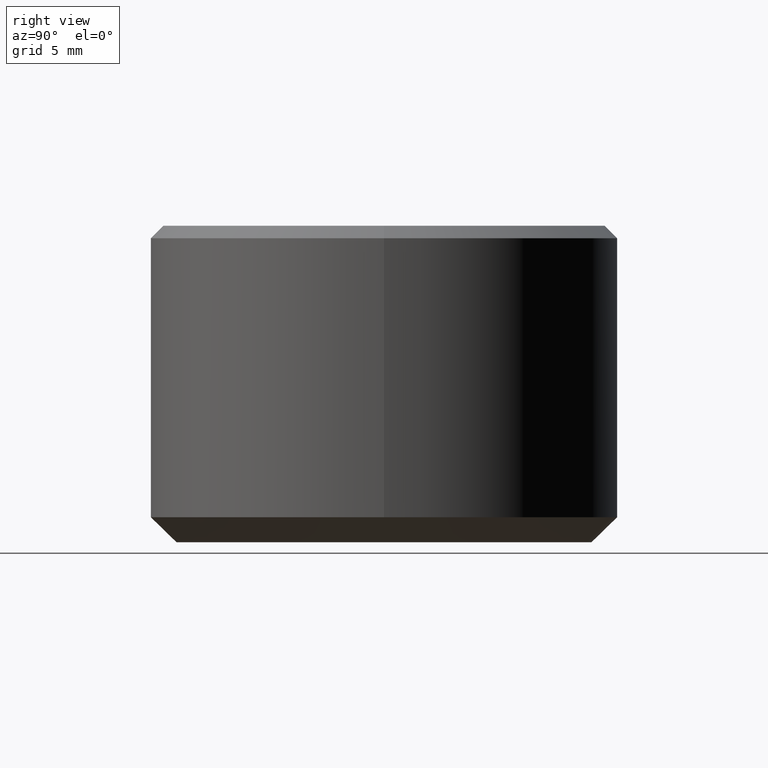
[diagram: clean part render]
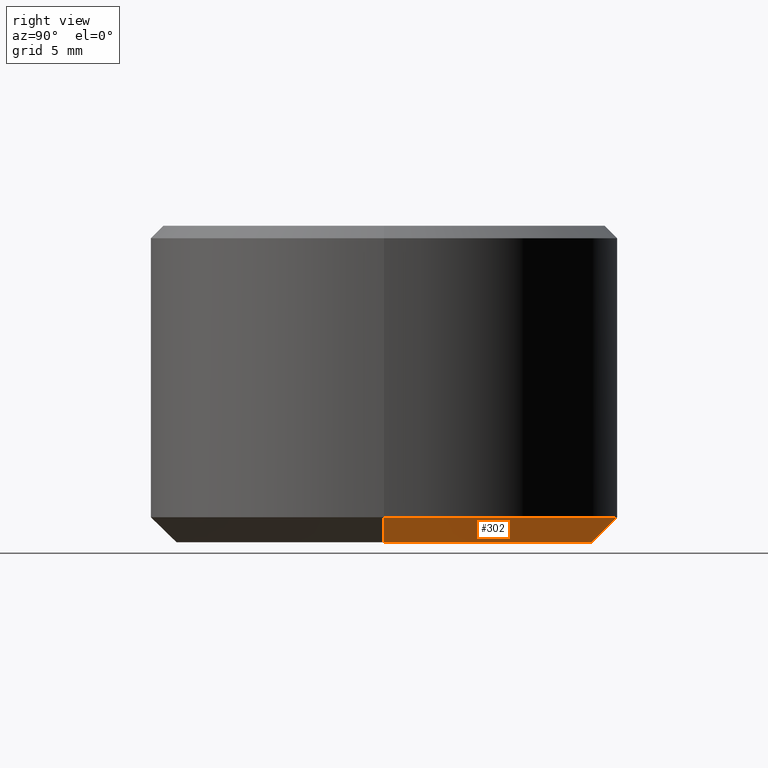
[diagram: same view with one face highlighted and labeled with its STEP entity id]
A machine part, right view. The second image highlights one B-rep face of the part: STEP entity #302.
In plain terms, the highlighted conical surface has half-angle 45 deg.
Its self-contained STEP definition (entity closure, byte-faithful):
#5 = VECTOR ( 'NONE', #94, 1000.000000000000000 ) ;
#6 = AXIS2_PLACEMENT_3D ( 'NONE', #210, #334, #61 ) ;
#10 = CARTESIAN_POINT ( 'NONE',  ( -12.49999999999984400, 1.622657008870240900E-015, 2.220446049250313100E-013 ) ) ;
#26 = CARTESIAN_POINT ( 'NONE',  ( 12.49999999999984400, 0.0000000000000000000, 2.220446049250313100E-013 ) ) ;
#27 = DIRECTION ( 'NONE',  ( -0.0000000000000000000, -0.0000000000000000000, 1.000000000000000000 ) ) ;
#31 = DIRECTION ( 'NONE',  ( 1.000000000000000000, 0.0000000000000000000, 0.0000000000000000000 ) ) ;
#41 = CARTESIAN_POINT ( 'NONE',  ( 14.00000000000012400, 0.0000000000000000000, 1.500000000000500700 ) ) ;
#61 = DIRECTION ( 'NONE',  ( 1.000000000000000000, 0.0000000000000000000, 0.0000000000000000000 ) ) ;
#76 = CARTESIAN_POINT ( 'NONE',  ( 0.0000000000000000000, 0.0000000000000000000, 2.220446049250313100E-013 ) ) ;
#83 = VERTEX_POINT ( 'NONE', #10 ) ;
#88 = AXIS2_PLACEMENT_3D ( 'NONE', #76, #27, #227 ) ;
#90 = EDGE_CURVE ( 'NONE', #251, #83, #168, .T. ) ;
#94 = DIRECTION ( 'NONE',  ( -0.7071067811865474600, 8.659560562354931600E-017, 0.7071067811865475700 ) ) ;
#97 = LINE ( 'NONE', #26, #230 ) ;
#100 = DIRECTION ( 'NONE',  ( -0.0000000000000000000, -0.0000000000000000000, 1.000000000000000000 ) ) ;
#104 = CARTESIAN_POINT ( 'NONE',  ( 0.0000000000000000000, 0.0000000000000000000, 1.500000000000500900 ) ) ;
#117 = EDGE_CURVE ( 'NONE', #169, #265, #194, .T. ) ;
#149 = CARTESIAN_POINT ( 'NONE',  ( -12.49999999999984400, 1.530808498934172600E-015, 2.220446049250313100E-013 ) ) ;
#152 = FACE_OUTER_BOUND ( 'NONE', #342, .T. ) ;
#166 = AXIS2_PLACEMENT_3D ( 'NONE', #104, #100, #31 ) ;
#168 = CIRCLE ( 'NONE', #6, 12.49999999999984400 ) ;
#169 = VERTEX_POINT ( 'NONE', #41 ) ;
#179 = ORIENTED_EDGE ( 'NONE', *, *, #117, .F. ) ;
#181 = LINE ( 'NONE', #149, #5 ) ;
#187 = ORIENTED_EDGE ( 'NONE', *, *, #319, .T. ) ;
#189 = CARTESIAN_POINT ( 'NONE',  ( 12.49999999999984400, 0.0000000000000000000, 2.220446049250313100E-013 ) ) ;
#194 = CIRCLE ( 'NONE', #166, 14.00000000000012400 ) ;
#210 = CARTESIAN_POINT ( 'NONE',  ( 0.0000000000000000000, 0.0000000000000000000, 2.220446049250313100E-013 ) ) ;
#227 = DIRECTION ( 'NONE',  ( 1.000000000000000000, 0.0000000000000000000, 0.0000000000000000000 ) ) ;
#230 = VECTOR ( 'NONE', #325, 1000.000000000000000 ) ;
#251 = VERTEX_POINT ( 'NONE', #189 ) ;
#265 = VERTEX_POINT ( 'NONE', #278 ) ;
#278 = CARTESIAN_POINT ( 'NONE',  ( -14.00000000000012400, 1.714505518806309600E-015, 1.500000000000500700 ) ) ;
#282 = ORIENTED_EDGE ( 'NONE', *, *, #90, .T. ) ;
#302 = ADVANCED_FACE ( 'NONE', ( #152 ), #312, .T. ) ;
#304 = EDGE_CURVE ( 'NONE', #251, #169, #97, .T. ) ;
#307 = ORIENTED_EDGE ( 'NONE', *, *, #304, .F. ) ;
#312 = CONICAL_SURFACE ( 'NONE', #88, 12.49999999999984400, 0.7853981633974482800 ) ;
#319 = EDGE_CURVE ( 'NONE', #83, #265, #181, .T. ) ;
#325 = DIRECTION ( 'NONE',  ( 0.7071067811865474600, 0.0000000000000000000, 0.7071067811865475700 ) ) ;
#334 = DIRECTION ( 'NONE',  ( -0.0000000000000000000, -0.0000000000000000000, 1.000000000000000000 ) ) ;
#342 = EDGE_LOOP ( 'NONE', ( #282, #187, #179, #307 ) ) ;